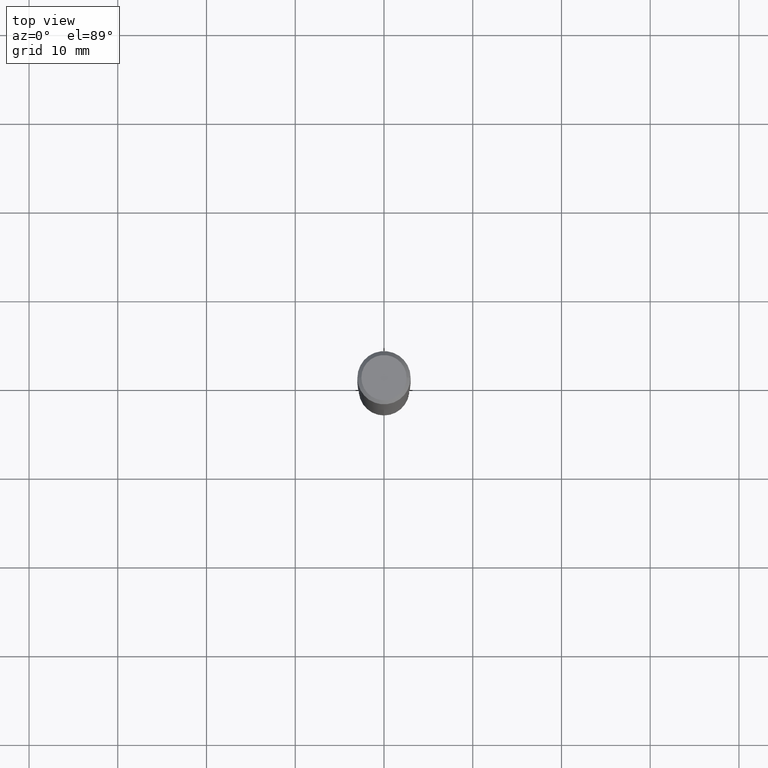
[diagram: clean part render]
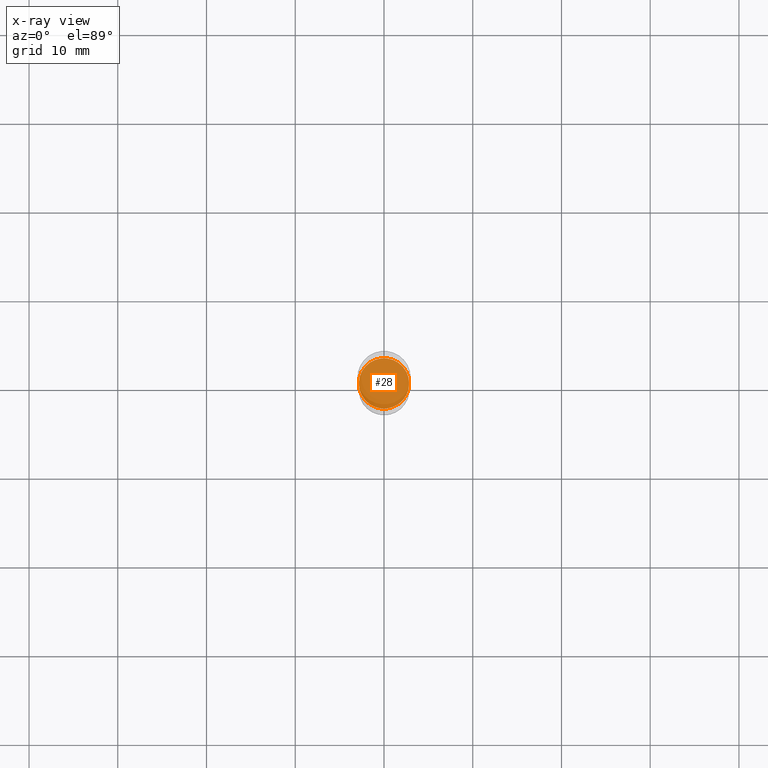
[diagram: x-ray — body ghosted, one internal face saturated and labeled with its STEP entity id]
A machine part, top view, then the same camera in x-ray: the body is ghosted and one INTERNAL B-rep face — a face not visible from any outside direction — is saturated and labeled: STEP entity #28.
In plain terms, the highlighted planar face has unit normal (-0, 0, 1).
Its self-contained STEP definition (entity closure, byte-faithful):
#28 = ADVANCED_FACE ( 'NONE', ( #475 ), #284, .F. ) ;
#33 = AXIS2_PLACEMENT_3D ( 'NONE', #397, #286, #220 ) ;
#43 = CIRCLE ( 'NONE', #120, 0.1116999999999999937 ) ;
#44 = CARTESIAN_POINT ( 'NONE',  ( 3.657687693411109493E-29, -5.222208638507693246E-15, -1.495700000000000029 ) ) ;
#52 = CARTESIAN_POINT ( 'NONE',  ( 3.657687693411109493E-29, -5.222208638507693246E-15, -1.495700000000000029 ) ) ;
#79 = EDGE_LOOP ( 'NONE', ( #128, #356 ) ) ;
#105 = CIRCLE ( 'NONE', #396, 0.1116999999999999937 ) ;
#120 = AXIS2_PLACEMENT_3D ( 'NONE', #44, #438, #393 ) ;
#121 = VERTEX_POINT ( 'NONE', #487 ) ;
#128 = ORIENTED_EDGE ( 'NONE', *, *, #349, .F. ) ;
#220 = DIRECTION ( 'NONE',  ( 1.000000000000000000, -6.982962677686265922E-15, 4.876176775795935793E-29 ) ) ;
#282 = DIRECTION ( 'NONE',  ( 1.000000000000000000, -6.982962677686262766E-15, 0.000000000000000000 ) ) ;
#284 = PLANE ( 'NONE',  #33 ) ;
#286 = DIRECTION ( 'NONE',  ( -2.438088387897960049E-29, 3.491481338843145188E-15, 1.000000000000000000 ) ) ;
#322 = CARTESIAN_POINT ( 'NONE',  ( -0.1116999999999999937, -4.425883175489550774E-15, -1.495700000000000029 ) ) ;
#349 = EDGE_CURVE ( 'NONE', #121, #420, #43, .T. ) ;
#355 = EDGE_CURVE ( 'NONE', #420, #121, #105, .T. ) ;
#356 = ORIENTED_EDGE ( 'NONE', *, *, #355, .F. ) ;
#393 = DIRECTION ( 'NONE',  ( 1.000000000000000000, -6.982962677686262766E-15, 0.000000000000000000 ) ) ;
#396 = AXIS2_PLACEMENT_3D ( 'NONE', #52, #429, #282 ) ;
#397 = CARTESIAN_POINT ( 'NONE',  ( 3.657687693411109493E-29, -5.222208638507693246E-15, -1.495700000000000029 ) ) ;
#420 = VERTEX_POINT ( 'NONE', #322 ) ;
#429 = DIRECTION ( 'NONE',  ( -2.445468806185136597E-29, 3.491481338843145583E-15, 1.000000000000000000 ) ) ;
#438 = DIRECTION ( 'NONE',  ( -2.445468806185136597E-29, 3.491481338843145583E-15, 1.000000000000000000 ) ) ;
#475 = FACE_OUTER_BOUND ( 'NONE', #79, .T. ) ;
#487 = CARTESIAN_POINT ( 'NONE',  ( 0.1116999999999999937, -6.002205569605248651E-15, -1.495700000000000029 ) ) ;